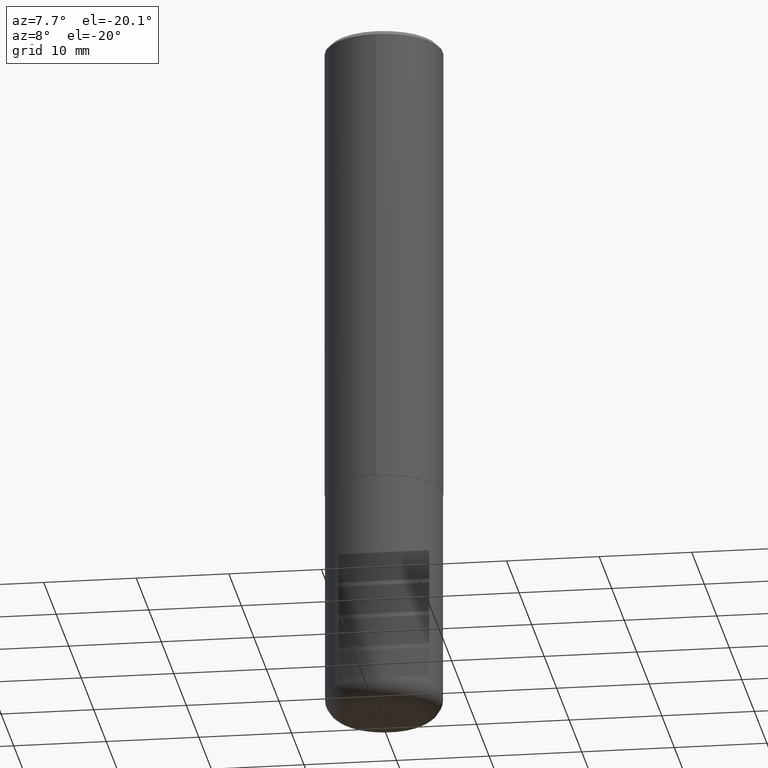
[diagram: clean part render]
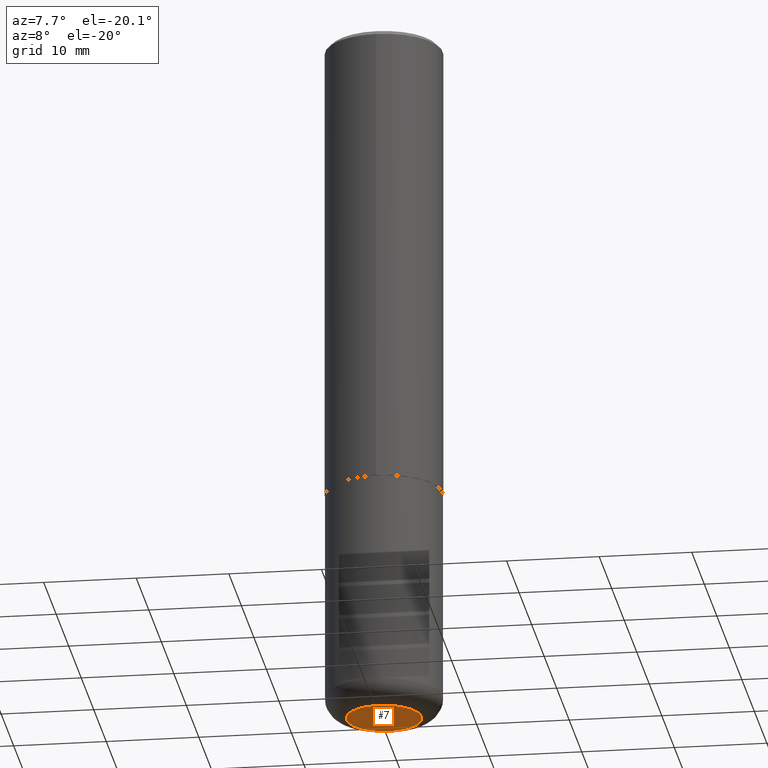
[diagram: same view with one face highlighted and labeled with its STEP entity id]
A machine part, auxiliary view. The second image highlights one B-rep face of the part: STEP entity #7.
In plain terms, the highlighted planar face has unit normal (0, -0, -1).
Its self-contained STEP definition (entity closure, byte-faithful):
#7 = ADVANCED_FACE ( 'NONE', ( #11 ), #367, .T. ) ;
#11 = FACE_OUTER_BOUND ( 'NONE', #133, .T. ) ;
#28 = AXIS2_PLACEMENT_3D ( 'NONE', #142, #267, #361 ) ;
#38 = CIRCLE ( 'NONE', #268, 0.1600000000000000033 ) ;
#43 = VERTEX_POINT ( 'NONE', #296 ) ;
#84 = DIRECTION ( 'NONE',  ( -2.445468806185136597E-29, 3.491481338843145583E-15, 1.000000000000000000 ) ) ;
#115 = CIRCLE ( 'NONE', #354, 0.1600000000000000033 ) ;
#133 = EDGE_LOOP ( 'NONE', ( #139, #174 ) ) ;
#139 = ORIENTED_EDGE ( 'NONE', *, *, #341, .F. ) ;
#142 = CARTESIAN_POINT ( 'NONE',  ( 7.336406418555409790E-29, -1.047444401652943635E-14, -3.000000000000000444 ) ) ;
#174 = ORIENTED_EDGE ( 'NONE', *, *, #187, .F. ) ;
#184 = DIRECTION ( 'NONE',  ( -2.445468806185136597E-29, 3.491481338843145583E-15, 1.000000000000000000 ) ) ;
#187 = EDGE_CURVE ( 'NONE', #43, #360, #38, .T. ) ;
#229 = CARTESIAN_POINT ( 'NONE',  ( 7.336406418555409790E-29, -1.047444401652943635E-14, -3.000000000000000444 ) ) ;
#246 = CARTESIAN_POINT ( 'NONE',  ( 7.336406418555409790E-29, -1.047444401652943635E-14, -3.000000000000000444 ) ) ;
#267 = DIRECTION ( 'NONE',  ( 2.438088387897960049E-29, -3.491481338843145188E-15, -1.000000000000000000 ) ) ;
#268 = AXIS2_PLACEMENT_3D ( 'NONE', #246, #184, #373 ) ;
#296 = CARTESIAN_POINT ( 'NONE',  ( -0.1600000000000000033, -8.860714747973290413E-15, -3.000000000000000444 ) ) ;
#323 = CARTESIAN_POINT ( 'NONE',  ( 0.1600000000000000033, -1.159171804495923808E-14, -3.000000000000000444 ) ) ;
#341 = EDGE_CURVE ( 'NONE', #360, #43, #115, .T. ) ;
#354 = AXIS2_PLACEMENT_3D ( 'NONE', #229, #84, #356 ) ;
#356 = DIRECTION ( 'NONE',  ( 1.000000000000000000, -6.982962677686259611E-15, 0.000000000000000000 ) ) ;
#360 = VERTEX_POINT ( 'NONE', #323 ) ;
#361 = DIRECTION ( 'NONE',  ( -1.000000000000000000, 6.982962677686265922E-15, -4.876176775795935793E-29 ) ) ;
#367 = PLANE ( 'NONE',  #28 ) ;
#373 = DIRECTION ( 'NONE',  ( 1.000000000000000000, -6.982962677686259611E-15, 0.000000000000000000 ) ) ;